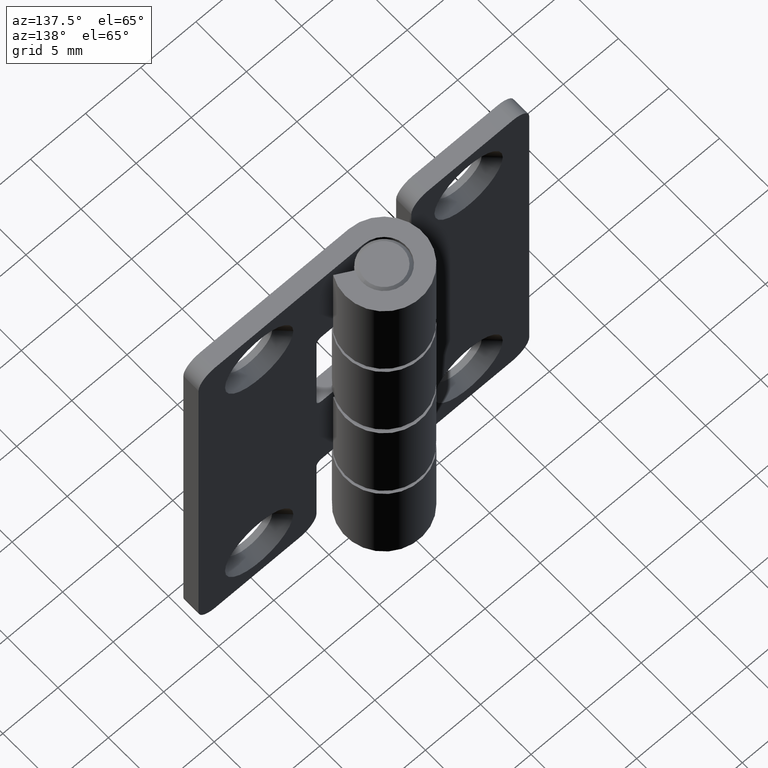
[diagram: clean part render]
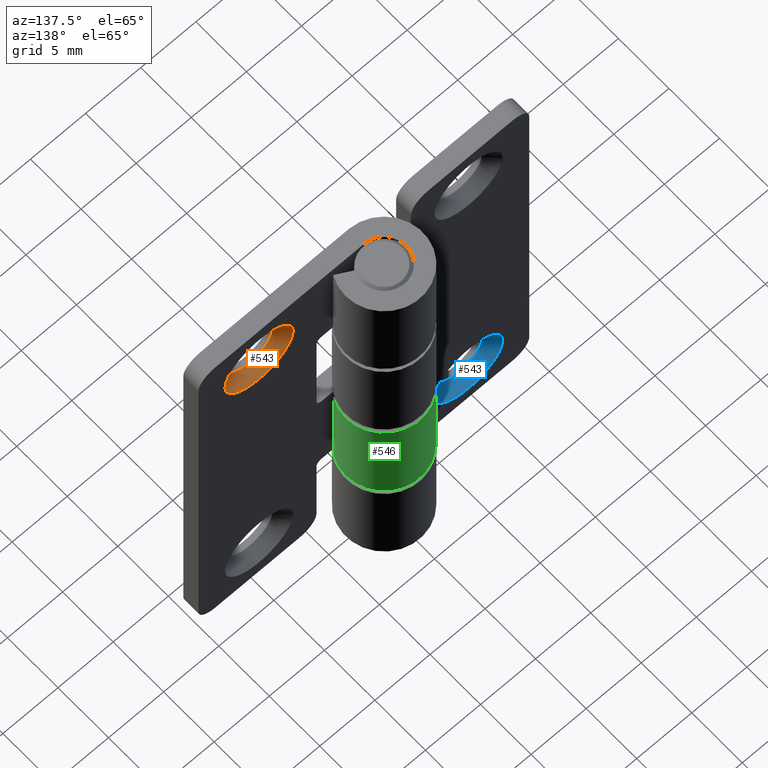
[diagram: same view with three faces highlighted in distinct colors, each labeled with its STEP entity id]
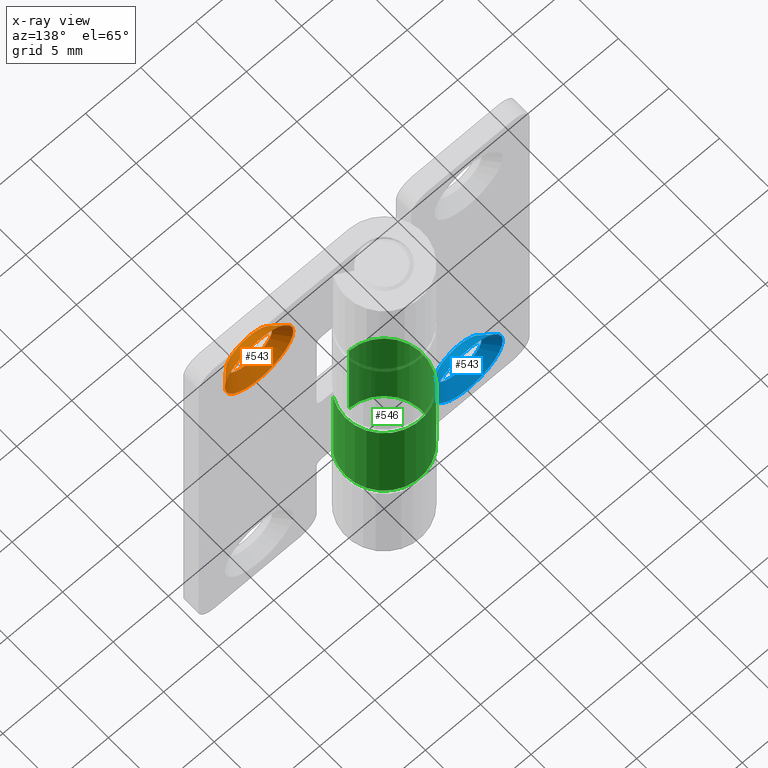
[diagram: x-ray of the same camera — body ghosted, the three highlighted faces saturated]
A machine part, auxiliary view with three faces highlighted in distinct colors.
The next image is the same camera in x-ray (body ghosted, the three faces saturated) — at least one of them is partly hidden behind the body in this view.
Their STEP definitions:

[orange] entity #543 — the highlighted conical surface has half-angle 45 deg.
#38=CONICAL_SURFACE('',#601,2.6,0.785398163397448);
#45=FACE_BOUND('',#123,.T.);
#87=FACE_OUTER_BOUND('',#122,.T.);
#122=EDGE_LOOP('',(#469));
#123=EDGE_LOOP('',(#470));
#234=CIRCLE('',#580,3.1);
#243=CIRCLE('',#602,2.1);
#281=VERTEX_POINT('',#878);
#293=VERTEX_POINT('',#925);
#339=EDGE_CURVE('',#281,#281,#234,.T.);
#361=EDGE_CURVE('',#293,#293,#243,.T.);
#469=ORIENTED_EDGE('',*,*,#361,.F.);
#470=ORIENTED_EDGE('',*,*,#339,.F.);
#543=ADVANCED_FACE('',(#87,#45),#38,.F.);
#580=AXIS2_PLACEMENT_3D('',#879,#697,#698);
#601=AXIS2_PLACEMENT_3D('',#924,#752,#753);
#602=AXIS2_PLACEMENT_3D('',#926,#754,#755);
#697=DIRECTION('center_axis',(2.40548322002117E-16,-1.,0.));
#698=DIRECTION('ref_axis',(1.,2.40548322002117E-16,0.));
#752=DIRECTION('center_axis',(-2.40548322002117E-16,1.,0.));
#753=DIRECTION('ref_axis',(1.,2.40548322002117E-16,0.));
#754=DIRECTION('center_axis',(-2.40548322002117E-16,1.,0.));
#755=DIRECTION('ref_axis',(1.,2.40548322002117E-16,0.));
#878=CARTESIAN_POINT('',(6.4,-2.,14.5));
#879=CARTESIAN_POINT('Origin',(9.5,-2.,14.5));
#924=CARTESIAN_POINT('Origin',(9.5,-2.5,14.5));
#925=CARTESIAN_POINT('',(7.4,-3.,14.5));
#926=CARTESIAN_POINT('Origin',(9.5,-2.99999999999999,14.5));

[blue] entity #543 — the highlighted conical surface has half-angle 45 deg.
#38=CONICAL_SURFACE('',#601,2.6,0.785398163397448);
#45=FACE_BOUND('',#123,.T.);
#87=FACE_OUTER_BOUND('',#122,.T.);
#122=EDGE_LOOP('',(#469));
#123=EDGE_LOOP('',(#470));
#234=CIRCLE('',#580,3.1);
#243=CIRCLE('',#602,2.1);
#281=VERTEX_POINT('',#878);
#293=VERTEX_POINT('',#925);
#339=EDGE_CURVE('',#281,#281,#234,.T.);
#361=EDGE_CURVE('',#293,#293,#243,.T.);
#469=ORIENTED_EDGE('',*,*,#361,.F.);
#470=ORIENTED_EDGE('',*,*,#339,.F.);
#543=ADVANCED_FACE('',(#87,#45),#38,.F.);
#580=AXIS2_PLACEMENT_3D('',#879,#697,#698);
#601=AXIS2_PLACEMENT_3D('',#924,#752,#753);
#602=AXIS2_PLACEMENT_3D('',#926,#754,#755);
#697=DIRECTION('center_axis',(2.40548322002117E-16,-1.,0.));
#698=DIRECTION('ref_axis',(1.,2.40548322002117E-16,0.));
#752=DIRECTION('center_axis',(-2.40548322002117E-16,1.,0.));
#753=DIRECTION('ref_axis',(1.,2.40548322002117E-16,0.));
#754=DIRECTION('center_axis',(-2.40548322002117E-16,1.,0.));
#755=DIRECTION('ref_axis',(1.,2.40548322002117E-16,0.));
#878=CARTESIAN_POINT('',(6.4,-2.,14.5));
#879=CARTESIAN_POINT('Origin',(9.5,-2.,14.5));
#924=CARTESIAN_POINT('Origin',(9.5,-2.5,14.5));
#925=CARTESIAN_POINT('',(7.4,-3.,14.5));
#926=CARTESIAN_POINT('Origin',(9.5,-2.99999999999999,14.5));

[green] entity #546 — the highlighted cylindrical surface (partial cylindrical patch) has radius 3.5 mm, axis along (0, 0, 1).
#90=FACE_OUTER_BOUND('',#129,.T.);
#129=EDGE_LOOP('',(#491,#492,#493,#494));
#176=LINE('',#914,#216);
#178=LINE('',#932,#218);
#216=VECTOR('',#737,9.1);
#218=VECTOR('',#763,9.1);
#228=CIRCLE('',#571,3.5);
#237=CIRCLE('',#588,3.5);
#269=VERTEX_POINT('',#845);
#270=VERTEX_POINT('',#847);
#285=VERTEX_POINT('',#895);
#286=VERTEX_POINT('',#897);
#322=EDGE_CURVE('',#270,#269,#228,.T.);
#348=EDGE_CURVE('',#286,#285,#237,.T.);
#357=EDGE_CURVE('',#269,#286,#176,.T.);
#364=EDGE_CURVE('',#285,#270,#178,.T.);
#491=ORIENTED_EDGE('',*,*,#322,.T.);
#492=ORIENTED_EDGE('',*,*,#357,.T.);
#493=ORIENTED_EDGE('',*,*,#348,.T.);
#494=ORIENTED_EDGE('',*,*,#364,.T.);
#520=CYLINDRICAL_SURFACE('',#606,3.5);
#546=ADVANCED_FACE('',(#90),#520,.T.);
#571=AXIS2_PLACEMENT_3D('',#848,#668,#669);
#588=AXIS2_PLACEMENT_3D('',#898,#719,#720);
#606=AXIS2_PLACEMENT_3D('',#933,#764,#765);
#668=DIRECTION('center_axis',(4.06112035344191E-16,6.44107046023581E-32,
-1.));
#669=DIRECTION('ref_axis',(0.87411763090162,-0.485714285714286,3.54989690215699E-16));
#719=DIRECTION('center_axis',(-8.12224070688383E-16,-8.58809394698107E-32,
1.));
#720=DIRECTION('ref_axis',(0.87411763090162,-0.485714285714286,7.09979380431399E-16));
#737=DIRECTION('',(0.,0.,-1.));
#763=DIRECTION('',(0.,0.,1.));
#764=DIRECTION('center_axis',(0.,0.,1.));
#765=DIRECTION('ref_axis',(-0.50709255283711,0.861891607371335,0.));
#845=CARTESIAN_POINT('',(3.05941170815567,-1.7,-0.299999999999999));
#847=CARTESIAN_POINT('',(4.28626379701574E-16,-3.5,-0.3));
#848=CARTESIAN_POINT('Origin',(0.,0.,-0.300000000000002));
#895=CARTESIAN_POINT('',(4.28626379701574E-16,-3.5,-9.4));
#897=CARTESIAN_POINT('',(3.05941170815567,-1.7,-9.4));
#898=CARTESIAN_POINT('Origin',(0.,0.,-9.4));
#914=CARTESIAN_POINT('',(3.05941170815567,-1.7,0.));
#932=CARTESIAN_POINT('',(4.28626379701574E-16,-3.5,0.));
#933=CARTESIAN_POINT('Origin',(0.,0.,0.));